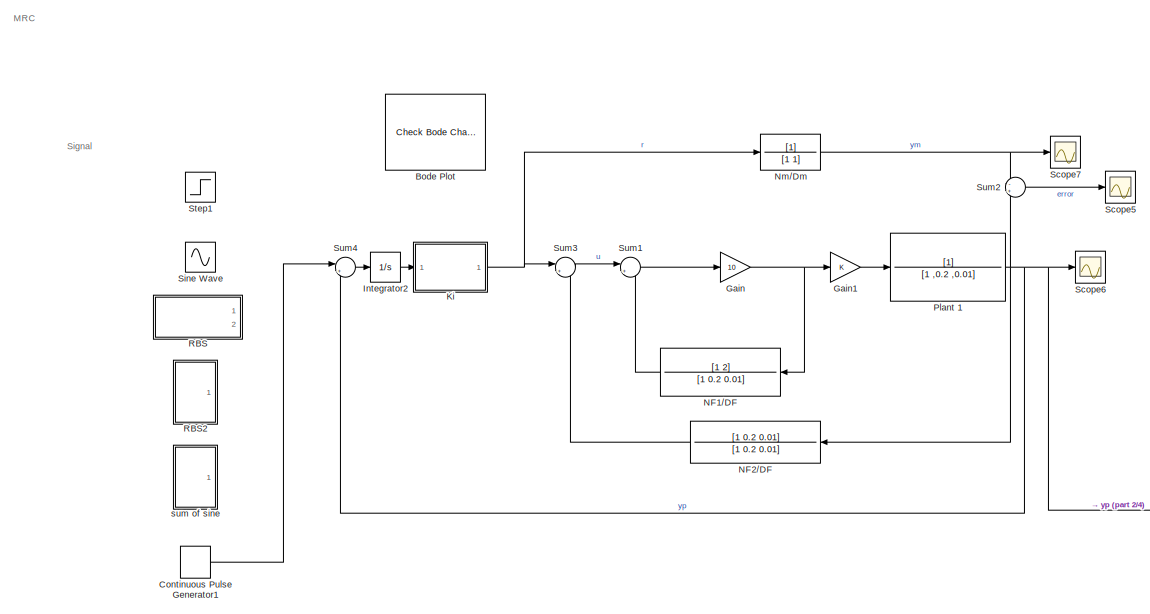
[diagram: root canvas - part 1/4, full width, top band]
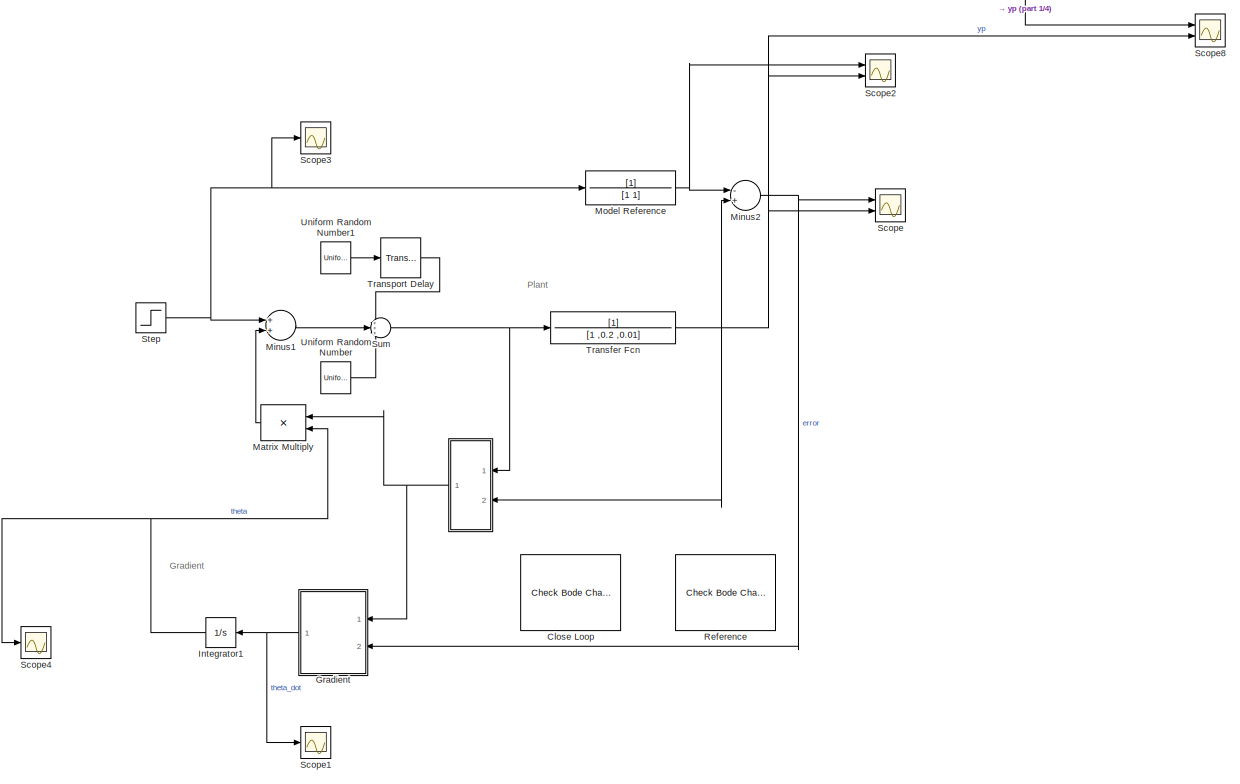
[diagram: root canvas - part 2/4, full width, middle band]
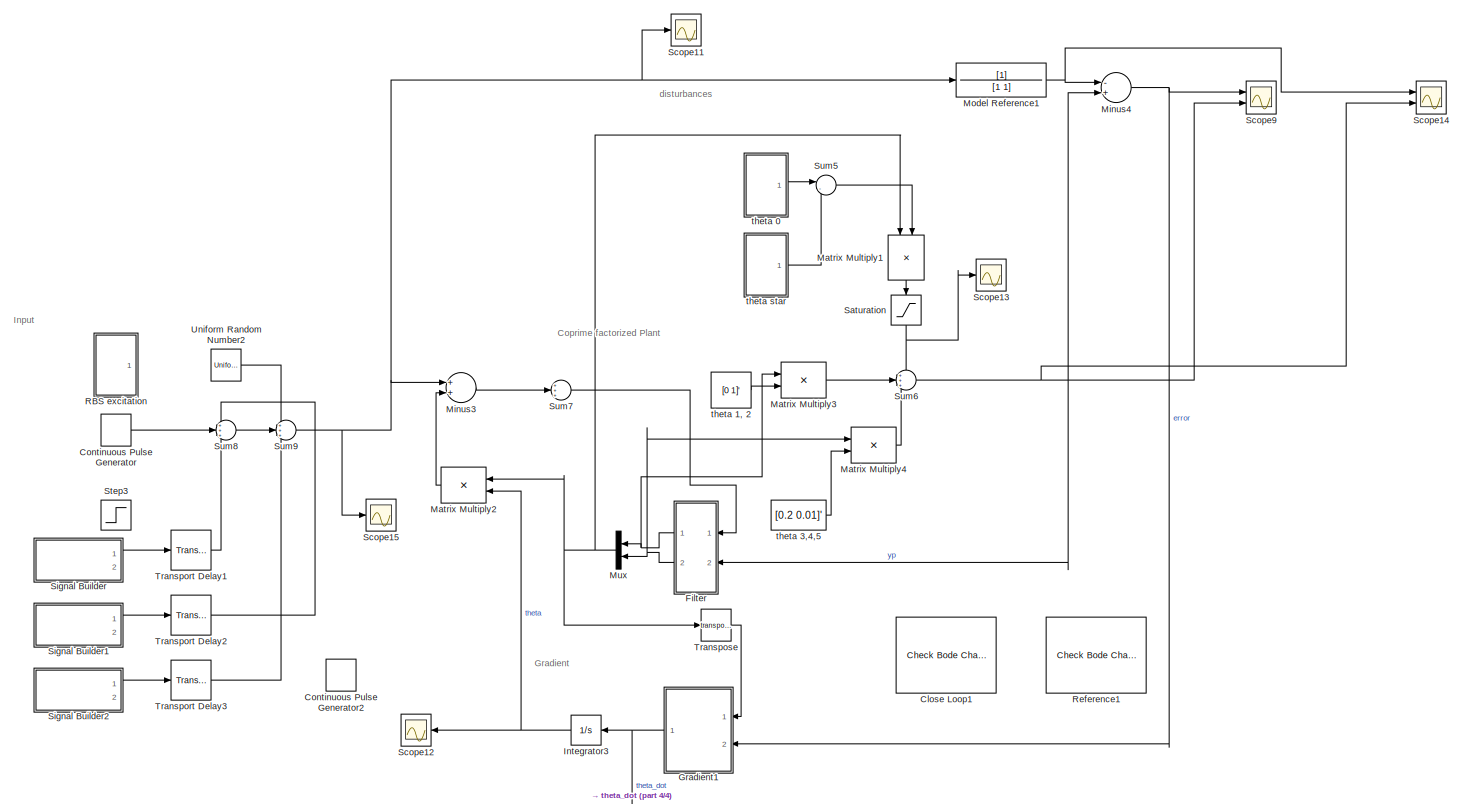
[diagram: root canvas - part 3/4, full width, bottom band]
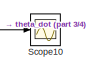
[diagram: root canvas - part 4/4, bottom center region]
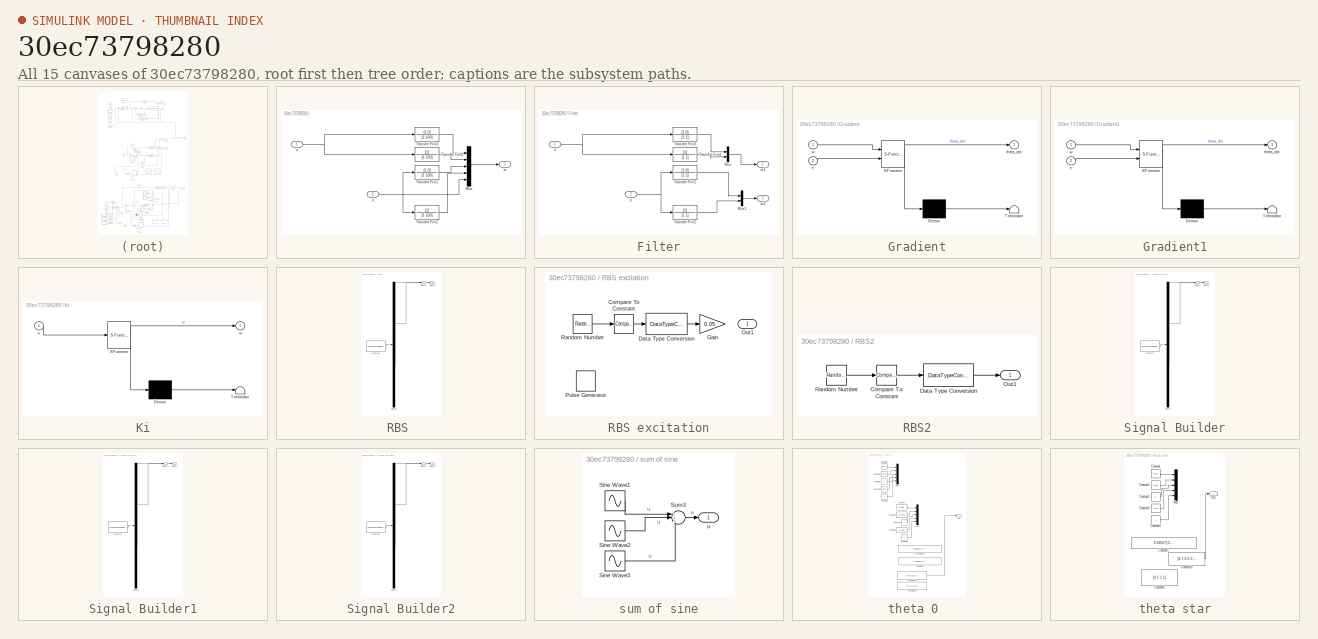
[diagram: thumbnail index - all 15 canvases of the model, root first then tree order]
MODEL slx_30ec73798280
KIND model
CONFIG AbsTol = auto
CONFIG EnableMultiTasking = off
CONFIG FixedStep = auto
CONFIG MaxStep = auto
CONFIG MinStep = auto
CONFIG RelTol = 1e-3
CONFIG SampleTimeConstraint = Unconstrained
CONFIG Solver = VariableStepAuto
CONFIG SolverName = VariableStepAuto
CONFIG StartTime = 0.0
CONFIG StopTime = 17000
BLOCK [SubSystem]  
  Commented = on
  Ports = [2, 1]
  RequestExecContextInheritance = off
BLOCK [Mux]  /Mux
  DisplayOption = bar
  Inputs = 5
  Ports = [5, 1]
BLOCK [TransferFcn]  /Transfer Fcn1
  Denominator = [1 100]
  Numerator = [1 0]
BLOCK [TransferFcn]  /Transfer Fcn2
  Denominator = [1 100]
BLOCK [TransferFcn]  /Transfer Fcn3
  Denominator = [1 100]
  Numerator = [1 0]
BLOCK [TransferFcn]  /Transfer Fcn4
  Denominator = [1 100]
BLOCK [Inport]  /u 
  IconDisplay = Port number
BLOCK [Outport]  /w
  IconDisplay = Port number
BLOCK [Inport]  /y 
  IconDisplay = Port number
  Port = 2
BLOCK [Reference] Bode Plot  REF=slctrlblks/Model Verification/Check Bode 
Characteristics
  Commented = on
  InstantiateOnLoad = on
  Ports = []
  SourceBlock = slctrlblks/Model Verification/Check Bode \nCharacteristics
  SourceProductBaseCode = SD
  SourceProductName = Simulink Control Design
  SourceType = Checks_Bode
BLOCK [Reference] Close Loop  REF=slctrlblks/Model Verification/Check Bode 
Characteristics
  Commented = on
  InstantiateOnLoad = on
  Ports = []
  SourceBlock = slctrlblks/Model Verification/Check Bode \nCharacteristics
  SourceProductBaseCode = SD
  SourceProductName = Simulink Control Design
  SourceType = Checks_Bode
BLOCK [Reference] Close Loop1  REF=slctrlblks/Model Verification/Check Bode 
Characteristics
  InstantiateOnLoad = on
  Ports = []
  SourceBlock = slctrlblks/Model Verification/Check Bode \nCharacteristics
  SourceProductBaseCode = SD
  SourceProductName = Simulink Control Design
  SourceType = Checks_Bode
BLOCK [DiscretePulseGenerator] Continuous Pulse Generator
  Period = 60
  Ports = [0, 1]
  PulseType = Time based
  PulseWidth = 50
BLOCK [DiscretePulseGenerator] Continuous Pulse Generator1
  Commented = on
  Period = 1
  Ports = [0, 1]
  PulseType = Time based
  PulseWidth = 50
BLOCK [DiscretePulseGenerator] Continuous Pulse Generator2
  Amplitude = 10
  Commented = on
  Period = 1
  Ports = [0, 1]
  PulseType = Time based
  PulseWidth = 50
BLOCK [SubSystem] Filter
  Ports = [2, 2]
  RequestExecContextInheritance = off
BLOCK [Mux] Filter/Mux
  DisplayOption = bar
  Inputs = 2
  Ports = [2, 1]
BLOCK [Mux] Filter/Mux1
  DisplayOption = bar
  Inputs = 2
  Ports = [2, 1]
BLOCK [TransferFcn] Filter/Transfer Fcn1
  Denominator = [1 1]
  Numerator = [1 0]
BLOCK [TransferFcn] Filter/Transfer Fcn2
  Denominator = [1 1]
BLOCK [TransferFcn] Filter/Transfer Fcn3
  Denominator = [1 1]
  Numerator = [1 0]
BLOCK [TransferFcn] Filter/Transfer Fcn4
  Denominator = [1 1]
BLOCK [Inport] Filter/u 
  IconDisplay = Port number
BLOCK [Outport] Filter/w1
  IconDisplay = Port number
BLOCK [Outport] Filter/w2
  IconDisplay = Port number
  Port = 2
BLOCK [Inport] Filter/y 
  IconDisplay = Port number
  Port = 2
BLOCK [Gain] Gain
  Commented = on
  Gain = 10
  OutDataTypeStr = Inherit: Inherit via internal rule
  ParamDataTypeStr = Inherit: Inherit via internal rule
  SaturateOnIntegerOverflow = off
BLOCK [Gain] Gain1
  Commented = on
  OutDataTypeStr = Inherit: Inherit via internal rule
  ParamDataTypeStr = Inherit: Inherit via internal rule
  SaturateOnIntegerOverflow = off
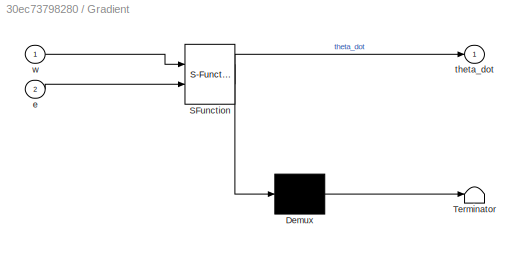
BLOCK [SubSystem] Gradient
  Commented = on
  ErrorFcn = Stateflow.Translate.translate
  PermitHierarchicalResolution = ExplicitOnly
  Ports = [2, 1]
  RequestExecContextInheritance = off
  SFBlockType = MATLAB Function
  TreatAsAtomicUnit = on
BLOCK [Demux] Gradient/ Demux 
  Outputs = 1
  Ports = [1, 1]
BLOCK [S-Function] Gradient/ SFunction 
  EnableBusSupport = on
  FunctionName = sf_sfun
  PortCounts = [2 2]
  Ports = [2, 2]
  SFcnIsStateOwnerBlock = off
  SFunctionDeploymentMode = off
  Tag = Stateflow S-Function 2
BLOCK [Terminator] Gradient/ Terminator 
BLOCK [Inport] Gradient/e
  IconDisplay = Port number
  Port = 2
BLOCK [Outport] Gradient/theta_dot
  IconDisplay = Port number
BLOCK [Inport] Gradient/w
  IconDisplay = Port number
BLOCK [SubSystem] Gradient1
  ErrorFcn = Stateflow.Translate.translate
  PermitHierarchicalResolution = ExplicitOnly
  Ports = [2, 1]
  RequestExecContextInheritance = off
  SFBlockType = MATLAB Function
  TreatAsAtomicUnit = on
BLOCK [Demux] Gradient1/ Demux 
  Outputs = 1
  Ports = [1, 1]
BLOCK [S-Function] Gradient1/ SFunction 
  EnableBusSupport = on
  FunctionName = sf_sfun
  PortCounts = [2 2]
  Ports = [2, 2]
  SFcnIsStateOwnerBlock = off
  SFunctionDeploymentMode = off
  Tag = Stateflow S-Function 5
BLOCK [Terminator] Gradient1/ Terminator 
BLOCK [Inport] Gradient1/e
  IconDisplay = Port number
  Port = 2
BLOCK [Outport] Gradient1/theta_dot
  IconDisplay = Port number
BLOCK [Inport] Gradient1/w
  IconDisplay = Port number
BLOCK [Integrator] Integrator1
  Commented = on
  Ports = [1, 1]
BLOCK [Integrator] Integrator2
  Commented = on
  Ports = [1, 1]
BLOCK [Integrator] Integrator3
  Ports = [1, 1]
BLOCK [SubSystem] Ki
  Commented = on
  ErrorFcn = Stateflow.Translate.translate
  PermitHierarchicalResolution = ExplicitOnly
  Ports = [1, 1]
  RequestExecContextInheritance = off
  SFBlockType = MATLAB Function
  TreatAsAtomicUnit = on
BLOCK [Demux] Ki/ Demux 
  Outputs = 1
  Ports = [1, 1]
BLOCK [S-Function] Ki/ SFunction 
  EnableBusSupport = on
  FunctionName = sf_sfun
  PortCounts = [1 2]
  Ports = [1, 2]
  SFcnIsStateOwnerBlock = off
  SFunctionDeploymentMode = off
  Tag = Stateflow S-Function 4
BLOCK [Terminator] Ki/ Terminator 
BLOCK [Inport] Ki/u
  IconDisplay = Port number
BLOCK [Outport] Ki/ui
  IconDisplay = Port number
BLOCK [Product] Matrix Multiply
  Commented = on
  InputSameDT = off
  Multiplication = Matrix(*)
  OutDataTypeStr = Inherit: Inherit via internal rule
  Ports = [2, 1]
  RndMeth = Floor
  SaturateOnIntegerOverflow = off
BLOCK [Product] Matrix Multiply1
  InputSameDT = off
  Multiplication = Matrix(*)
  OutDataTypeStr = Inherit: Inherit via internal rule
  Ports = [2, 1]
  RndMeth = Floor
  SaturateOnIntegerOverflow = off
BLOCK [Product] Matrix Multiply2
  InputSameDT = off
  Multiplication = Matrix(*)
  OutDataTypeStr = Inherit: Inherit via internal rule
  Ports = [2, 1]
  RndMeth = Floor
  SaturateOnIntegerOverflow = off
BLOCK [Product] Matrix Multiply3
  InputSameDT = off
  Multiplication = Matrix(*)
  OutDataTypeStr = Inherit: Inherit via internal rule
  Ports = [2, 1]
  RndMeth = Floor
  SaturateOnIntegerOverflow = off
BLOCK [Product] Matrix Multiply4
  InputSameDT = off
  Multiplication = Matrix(*)
  OutDataTypeStr = Inherit: Inherit via internal rule
  Ports = [2, 1]
  RndMeth = Floor
  SaturateOnIntegerOverflow = off
BLOCK [Sum] Minus1
  Commented = on
  InputSameDT = off
  OutDataTypeStr = Inherit: Inherit via internal rule
  Ports = [2, 1]
  SaturateOnIntegerOverflow = off
BLOCK [Sum] Minus2
  Commented = on
  InputSameDT = off
  Inputs = -+
  OutDataTypeStr = Inherit: Inherit via internal rule
  Ports = [2, 1]
  SaturateOnIntegerOverflow = off
BLOCK [Sum] Minus3
  InputSameDT = off
  OutDataTypeStr = Inherit: Inherit via internal rule
  Ports = [2, 1]
  SaturateOnIntegerOverflow = off
BLOCK [Sum] Minus4
  InputSameDT = off
  Inputs = -+
  OutDataTypeStr = Inherit: Inherit via internal rule
  Ports = [2, 1]
  SaturateOnIntegerOverflow = off
BLOCK [TransferFcn] Model Reference
  Commented = on
  Denominator = [1 1]
BLOCK [TransferFcn] Model Reference1
  Denominator = [1 1]
BLOCK [Mux] Mux
  DisplayOption = bar
  Inputs = 2
  Ports = [2, 1]
BLOCK [TransferFcn] NF1//DF
  Commented = on
  Denominator = [1 0.2 0.01]
  Numerator = [1 2]
BLOCK [TransferFcn] NF2//DF
  Commented = on
  Denominator = [1 0.2 0.01]
  Numerator = [1 0.2 0.01]
BLOCK [TransferFcn] Nm//Dm 
  Commented = on
  Denominator = [1 1]
BLOCK [TransferFcn] Plant 1
  Commented = on
  Denominator = [1 ,0.2 ,0.01]
BLOCK [SubSystem] RBS 
  ClipboardFcn = sigbuilder_block('clipboard');
  CloseFcn = sigbuilder_block('close');
  Commented = on
  ContinueFcn = sigbuilder_block('continue');
  CopyFcn = sigbuilder_block('copy');
  DeleteFcn = sigbuilder_block('delete');
  LoadFcn = sigbuilder_block('load');
  MaskHideContents = on
  ModelCloseFcn = sigbuilder_block('modelClose');
  NameChangeFcn = sigbuilder_block('namechange');
  OpenFcn = sigbuilder_block('open',[215 62.5 550.5 362.5 ]);
  PauseFcn = sigbuilder_block('pause');
  Ports = [0, 2]
  PreSaveFcn = sigbuilder_block('preSave');
  RequestExecContextInheritance = off
  StartFcn = sigbuilder_block('start');
  StopFcn = sigbuilder_block('stop');
  Tag = STV Subsys
BLOCK [Demux] RBS /Demux
  Outputs = 2
  Ports = [1, 2]
  Tag = STV Demux
BLOCK [FromWorkspace] RBS /FromWs
  SampleTime = 0
  Tag = STV FromWs
  VariableName = tuvar
  ZeroCross = on
BLOCK [Outport] RBS /Signal 1
  IconDisplay = Port number
  Tag = STV Outport
BLOCK [Outport] RBS /Signal 2
  IconDisplay = Port number
  Port = 2
  Tag = STV Outport
BLOCK [SubSystem] RBS excitation
  Ports = [0, 1]
  RequestExecContextInheritance = off
BLOCK [Reference] RBS excitation/Compare To Constant  REF=simulink/Logic and Bit
Operations/Compare
To Constant
  Ports = [1, 1]
  SourceBlock = simulink/Logic and Bit\nOperations/Compare\nTo Constant
  SourceProductBaseCode = SL
  SourceProductName = Simulink
  SourceType = Compare To Constant
BLOCK [DataTypeConversion] RBS excitation/Data Type Conversion
  OutDataTypeStr = double
  RndMeth = Floor
  SaturateOnIntegerOverflow = off
BLOCK [Gain] RBS excitation/Gain
  Gain = 0.05
  OutDataTypeStr = Inherit: Inherit via internal rule
  ParamDataTypeStr = Inherit: Inherit via internal rule
  SaturateOnIntegerOverflow = off
BLOCK [Outport] RBS excitation/Out1
  IconDisplay = Port number
BLOCK [DiscretePulseGenerator] RBS excitation/Pulse Generator
  Amplitude = 0.01
  Period = 10
  Ports = [0, 1]
  PulseType = Time based
  PulseWidth = 5
BLOCK [RandomNumber] RBS excitation/Random Number
  Mean = 0.1
  SampleTime = 1
  Variance = 0.1
BLOCK [SubSystem] RBS2
  Commented = on
  Ports = [0, 1]
  RequestExecContextInheritance = off
BLOCK [Reference] RBS2/Compare To Constant  REF=simulink/Logic and Bit
Operations/Compare
To Constant
  Ports = [1, 1]
  SourceBlock = simulink/Logic and Bit\nOperations/Compare\nTo Constant
  SourceProductBaseCode = SL
  SourceProductName = Simulink
  SourceType = Compare To Constant
BLOCK [DataTypeConversion] RBS2/Data Type Conversion
  OutDataTypeStr = double
  RndMeth = Floor
  SaturateOnIntegerOverflow = off
BLOCK [Outport] RBS2/Out1
  IconDisplay = Port number
BLOCK [RandomNumber] RBS2/Random Number
  Mean = 1
  SampleTime = 10
BLOCK [Reference] Reference  REF=slctrlblks/Model Verification/Check Bode 
Characteristics
  Commented = on
  InstantiateOnLoad = on
  Ports = []
  SourceBlock = slctrlblks/Model Verification/Check Bode \nCharacteristics
  SourceProductBaseCode = SD
  SourceProductName = Simulink Control Design
  SourceType = Checks_Bode
BLOCK [Reference] Reference1  REF=slctrlblks/Model Verification/Check Bode 
Characteristics
  InstantiateOnLoad = on
  Ports = []
  SourceBlock = slctrlblks/Model Verification/Check Bode \nCharacteristics
  SourceProductBaseCode = SD
  SourceProductName = Simulink Control Design
  SourceType = Checks_Bode
BLOCK [Saturate] Saturation
  InputPortMap = u0
  LowerLimit = -0.1
  Ports = [1, 1]
  UpperLimit = 0.1
BLOCK [Scope] Scope
  Commented = on
  Floating = off
  NumInputPorts = 2
  Ports = [2]
  ScopeSpecificationString = Simulink.scopes.TimeScopeBlockCfg('CurrentConfiguration', extmgr.ConfigurationSet(extmgr.Configuration('Core','General UI',true),extmgr.Configuration('Core','Source UI',true),extmgr.Configuration('Sources','WiredSimulink',true),extmgr.Configuration('Visuals','Time Domain',true,'SerializedDisplays',{struct('MinYLimReal','-5.57115','MaxYLimReal','8.4499','YLabelReal','','MinYLimMag','0.00000','MaxYL...<+1407ch>
BLOCK [Scope] Scope1
  Commented = on
  Floating = off
  NumInputPorts = 1
  Ports = [1]
  ScopeSpecificationString = Simulink.scopes.TimeScopeBlockCfg('CurrentConfiguration', extmgr.ConfigurationSet(extmgr.Configuration('Core','General UI',true),extmgr.Configuration('Core','Source UI',true),extmgr.Configuration('Sources','WiredSimulink',true,'DataLoggingVariableName','ScopeData1'),extmgr.Configuration('Visuals','Time Domain',true,'SerializedDisplays',{struct('MinYLimReal','-0.54544','MaxYLimReal','0.3019','YLabe...<+1486ch>
BLOCK [Scope] Scope10
  Floating = off
  NumInputPorts = 1
  Ports = [1]
  ScopeSpecificationString = Simulink.scopes.TimeScopeBlockCfg('CurrentConfiguration', extmgr.ConfigurationSet(extmgr.Configuration('Core','General UI',true),extmgr.Configuration('Core','Source UI',true),extmgr.Configuration('Sources','WiredSimulink',true,'DataLoggingVariableName','ScopeData1'),extmgr.Configuration('Visuals','Time Domain',true,'SerializedDisplays',{struct('MinYLimReal','-0.54544','MaxYLimReal','0.3019','YLabe...<+1486ch>
BLOCK [Scope] Scope11
  Floating = off
  NumInputPorts = 1
  Ports = [1]
  ScopeSpecificationString = Simulink.scopes.TimeScopeBlockCfg('CurrentConfiguration', extmgr.ConfigurationSet(extmgr.Configuration('Core','General UI',true),extmgr.Configuration('Core','Source UI',true),extmgr.Configuration('Sources','WiredSimulink',true,'DataLoggingVariableName','ScopeData2'),extmgr.Configuration('Visuals','Time Domain',true,'SerializedDisplays',{struct('MinYLimReal','-0.125','MaxYLimReal','1.125','YLabelRe...<+1379ch>
BLOCK [Scope] Scope12
  Floating = off
  NumInputPorts = 1
  Ports = [1]
  ScopeSpecificationString = Simulink.scopes.TimeScopeBlockCfg('CurrentConfiguration', extmgr.ConfigurationSet(extmgr.Configuration('Core','General UI',true),extmgr.Configuration('Core','Source UI',true),extmgr.Configuration('Sources','WiredSimulink',true,'DataLoggingVariableName','ScopeData3'),extmgr.Configuration('Visuals','Time Domain',true,'SerializedDisplays',{struct('MinYLimReal','-0.38248','MaxYLimReal','0.11683','YLab...<+1808ch>
BLOCK [Scope] Scope13
  Floating = off
  NumInputPorts = 1
  Ports = [1]
  ScopeSpecificationString = Simulink.scopes.TimeScopeBlockCfg('CurrentConfiguration', extmgr.ConfigurationSet(extmgr.Configuration('Core','General UI',true),extmgr.Configuration('Core','Source UI',true),extmgr.Configuration('Sources','WiredSimulink',true,'DataLoggingVariableName','ScopeData5'),extmgr.Configuration('Visuals','Time Domain',true,'SerializedDisplays',{struct('MinYLimReal','-0.125','MaxYLimReal','0.125','YLabelRe...<+1481ch>
BLOCK [Scope] Scope14
  Floating = off
  NumInputPorts = 2
  Ports = [2]
  ScopeSpecificationString = Simulink.scopes.TimeScopeBlockCfg('CurrentConfiguration', extmgr.ConfigurationSet(extmgr.Configuration('Core','General UI',true),extmgr.Configuration('Core','Source UI',true),extmgr.Configuration('Sources','WiredSimulink',true,'DataLoggingVariableName','ScopeData1'),extmgr.Configuration('Visuals','Time Domain',true,'SerializedDisplays',{struct('MinYLimReal','-0.22012','MaxYLimReal','1.29053','YLab...<+1512ch>
BLOCK [Scope] Scope15
  Floating = off
  NumInputPorts = 1
  Ports = [1]
  ScopeSpecificationString = Simulink.scopes.TimeScopeBlockCfg('CurrentConfiguration', extmgr.ConfigurationSet(extmgr.Configuration('Core','General UI',true),extmgr.Configuration('Core','Source UI',true),extmgr.Configuration('Sources','WiredSimulink',true,'DataLoggingVariableName','ScopeData1'),extmgr.Configuration('Visuals','Time Domain',true,'SerializedDisplays',{struct('MinYLimReal','-2.74998','MaxYLimReal','23.74985','YLa...<+1456ch>
BLOCK [Scope] Scope2
  Commented = on
  Floating = off
  NumInputPorts = 2
  Ports = [2]
  ScopeSpecificationString = Simulink.scopes.TimeScopeBlockCfg('CurrentConfiguration', extmgr.ConfigurationSet(extmgr.Configuration('Core','General UI',true),extmgr.Configuration('Core','Source UI',true),extmgr.Configuration('Sources','WiredSimulink',true,'DataLoggingVariableName','ScopeData2'),extmgr.Configuration('Visuals','Time Domain',true,'SerializedDisplays',{struct('MinYLimReal','-4.44702','MaxYLimReal','8.32526','YLab...<+1444ch>
BLOCK [Scope] Scope3
  Commented = on
  Floating = off
  NumInputPorts = 1
  Ports = [1]
  ScopeSpecificationString = Simulink.scopes.TimeScopeBlockCfg('CurrentConfiguration', extmgr.ConfigurationSet(extmgr.Configuration('Core','General UI',true),extmgr.Configuration('Core','Source UI',true),extmgr.Configuration('Sources','WiredSimulink',true,'DataLoggingVariableName','ScopeData3'),extmgr.Configuration('Visuals','Time Domain',true,'SerializedDisplays',{struct('MinYLimReal','-0.125','MaxYLimReal','1.125','YLabelRe...<+1351ch>
BLOCK [Scope] Scope4
  Commented = on
  Floating = off
  NumInputPorts = 1
  Ports = [1]
  ScopeSpecificationString = Simulink.scopes.TimeScopeBlockCfg('CurrentConfiguration', extmgr.ConfigurationSet(extmgr.Configuration('Core','General UI',true),extmgr.Configuration('Core','Source UI',true),extmgr.Configuration('Sources','WiredSimulink',true,'DataLoggingVariableName','ScopeData2'),extmgr.Configuration('Visuals','Time Domain',true,'SerializedDisplays',{struct('MinYLimReal','-0.09045','MaxYLimReal','0.05525','YLab...<+1470ch>
BLOCK [Scope] Scope5
  Commented = on
  Floating = off
  NumInputPorts = 1
  Ports = [1]
  ScopeSpecificationString = Simulink.scopes.TimeScopeBlockCfg('CurrentConfiguration', extmgr.ConfigurationSet(extmgr.Configuration('Core','General UI',true),extmgr.Configuration('Core','Source UI',true),extmgr.Configuration('Sources','WiredSimulink',true,'DataLoggingVariableName','ScopeData1'),extmgr.Configuration('Visuals','Time Domain',true,'SerializedDisplays',{struct('MinYLimReal','-0.01761','MaxYLimReal','0.00937','YLab...<+1434ch>
BLOCK [Scope] Scope6
  Commented = on
  Floating = off
  NumInputPorts = 1
  Ports = [1]
  ScopeSpecificationString = Simulink.scopes.TimeScopeBlockCfg('CurrentConfiguration', extmgr.ConfigurationSet(extmgr.Configuration('Core','General UI',true),extmgr.Configuration('Core','Source UI',true),extmgr.Configuration('Sources','WiredSimulink',true,'DataLoggingVariableName','ScopeData2'),extmgr.Configuration('Visuals','Time Domain',true,'SerializedDisplays',{struct('MinYLimReal','-0.06626','MaxYLimReal','0.59638','YLab...<+1431ch>
BLOCK [Scope] Scope7
  Commented = on
  Floating = off
  NumInputPorts = 1
  Ports = [1]
  ScopeSpecificationString = Simulink.scopes.TimeScopeBlockCfg('CurrentConfiguration', extmgr.ConfigurationSet(extmgr.Configuration('Core','General UI',true),extmgr.Configuration('Core','Source UI',true),extmgr.Configuration('Sources','WiredSimulink',true,'DataLoggingVariableName','ScopeData3'),extmgr.Configuration('Visuals','Time Domain',true,'SerializedDisplays',{struct('MinYLimReal','-0.06613','MaxYLimReal','0.59517','YLab...<+1386ch>
BLOCK [Scope] Scope8
  Commented = on
  Floating = off
  NumInputPorts = 2
  Ports = [2]
  ScopeSpecificationString = Simulink.scopes.TimeScopeBlockCfg('CurrentConfiguration', extmgr.ConfigurationSet(extmgr.Configuration('Core','General UI',true),extmgr.Configuration('Core','Source UI',true),extmgr.Configuration('Sources','WiredSimulink',true,'DataLoggingVariableName','ScopeData4'),extmgr.Configuration('Visuals','Time Domain',true),extmgr.Configuration('Tools','Plot Navigation',true),extmgr.Configuration('Tools',...<+40ch>
BLOCK [Scope] Scope9
  Floating = off
  NumInputPorts = 2
  Ports = [2]
  ScopeSpecificationString = Simulink.scopes.TimeScopeBlockCfg('CurrentConfiguration', extmgr.ConfigurationSet(extmgr.Configuration('Core','General UI',true),extmgr.Configuration('Core','Source UI',true),extmgr.Configuration('Sources','WiredSimulink',true,'DataLoggingVariableName','ScopeData4'),extmgr.Configuration('Visuals','Time Domain',true,'SerializedDisplays',{struct('MinYLimReal','-1.02377','MaxYLimReal','1.1794','YLabe...<+1498ch>
BLOCK [SubSystem] Signal Builder
  ClipboardFcn = sigbuilder_block('clipboard');
  CloseFcn = sigbuilder_block('close');
  ContinueFcn = sigbuilder_block('continue');
  CopyFcn = sigbuilder_block('copy');
  DeleteFcn = sigbuilder_block('delete');
  LoadFcn = sigbuilder_block('load');
  MaskHideContents = on
  ModelCloseFcn = sigbuilder_block('modelClose');
  NameChangeFcn = sigbuilder_block('namechange');
  OpenFcn = sigbuilder_block('open',[1440 -240 1440 725.5 ]);
  PauseFcn = sigbuilder_block('pause');
  Ports = [0, 2]
  PreSaveFcn = sigbuilder_block('preSave');
  RequestExecContextInheritance = off
  StartFcn = sigbuilder_block('start');
  StopFcn = sigbuilder_block('stop');
  Tag = STV Subsys
BLOCK [Demux] Signal Builder/Demux
  Outputs = 2
  Ports = [1, 2]
  Tag = STV Demux
BLOCK [FromWorkspace] Signal Builder/FromWs
  SampleTime = 0
  Tag = STV FromWs
  VariableName = tuvar
  ZeroCross = on
BLOCK [Outport] Signal Builder/Signal 1
  IconDisplay = Port number
  Tag = STV Outport
BLOCK [Outport] Signal Builder/Signal 2
  IconDisplay = Port number
  Port = 2
  Tag = STV Outport
BLOCK [SubSystem] Signal Builder1
  ClipboardFcn = sigbuilder_block('clipboard');
  CloseFcn = sigbuilder_block('close');
  ContinueFcn = sigbuilder_block('continue');
  CopyFcn = sigbuilder_block('copy');
  DeleteFcn = sigbuilder_block('delete');
  LoadFcn = sigbuilder_block('load');
  MaskHideContents = on
  ModelCloseFcn = sigbuilder_block('modelClose');
  NameChangeFcn = sigbuilder_block('namechange');
  OpenFcn = sigbuilder_block('open',[1759.5 -16 550.5 250 ]);
  PauseFcn = sigbuilder_block('pause');
  Ports = [0, 2]
  PreSaveFcn = sigbuilder_block('preSave');
  RequestExecContextInheritance = off
  StartFcn = sigbuilder_block('start');
  StopFcn = sigbuilder_block('stop');
  Tag = STV Subsys
BLOCK [Demux] Signal Builder1/Demux
  Outputs = 2
  Ports = [1, 2]
  Tag = STV Demux
BLOCK [FromWorkspace] Signal Builder1/FromWs
  SampleTime = 0
  Tag = STV FromWs
  VariableName = tuvar
  ZeroCross = on
BLOCK [Outport] Signal Builder1/Signal 1
  IconDisplay = Port number
  Tag = STV Outport
BLOCK [Outport] Signal Builder1/Signal 2
  IconDisplay = Port number
  Port = 2
  Tag = STV Outport
BLOCK [SubSystem] Signal Builder2
  ClipboardFcn = sigbuilder_block('clipboard');
  CloseFcn = sigbuilder_block('close');
  ContinueFcn = sigbuilder_block('continue');
  CopyFcn = sigbuilder_block('copy');
  DeleteFcn = sigbuilder_block('delete');
  LoadFcn = sigbuilder_block('load');
  MaskHideContents = on
  ModelCloseFcn = sigbuilder_block('modelClose');
  NameChangeFcn = sigbuilder_block('namechange');
  OpenFcn = sigbuilder_block('open',[1759.5 -16 550.5 250 ]);
  PauseFcn = sigbuilder_block('pause');
  Ports = [0, 2]
  PreSaveFcn = sigbuilder_block('preSave');
  RequestExecContextInheritance = off
  StartFcn = sigbuilder_block('start');
  StopFcn = sigbuilder_block('stop');
  Tag = STV Subsys
BLOCK [Demux] Signal Builder2/Demux
  Outputs = 2
  Ports = [1, 2]
  Tag = STV Demux
BLOCK [FromWorkspace] Signal Builder2/FromWs
  SampleTime = 0
  Tag = STV FromWs
  VariableName = tuvar
  ZeroCross = on
BLOCK [Outport] Signal Builder2/Signal 1
  IconDisplay = Port number
  Tag = STV Outport
BLOCK [Outport] Signal Builder2/Signal 2
  IconDisplay = Port number
  Port = 2
  Tag = STV Outport
BLOCK [Sin] Sine Wave
  Commented = on
  Frequency = 0.1
  Ports = [0, 1]
  SampleTime = 0
BLOCK [Step] Step
  Commented = on
  SampleTime = 0
BLOCK [Step] Step1
  Commented = on
  SampleTime = 0
BLOCK [Step] Step3
  SampleTime = 0
BLOCK [Sum] Sum
  Commented = on
  IconShape = round
  InputSameDT = off
  Inputs = +++
  OutDataTypeStr = Inherit: Inherit via internal rule
  Ports = [3, 1]
  SaturateOnIntegerOverflow = off
BLOCK [Sum] Sum1
  Commented = on
  IconShape = round
  InputSameDT = off
  Inputs = |+-
  OutDataTypeStr = Inherit: Inherit via internal rule
  Ports = [2, 1]
  SaturateOnIntegerOverflow = off
BLOCK [Sum] Sum2
  Commented = on
  IconShape = round
  InputSameDT = off
  Inputs = -+
  OutDataTypeStr = Inherit: Inherit via internal rule
  Ports = [2, 1]
  SaturateOnIntegerOverflow = off
BLOCK [Sum] Sum3
  Commented = on
  IconShape = round
  InputSameDT = off
  Inputs = |++
  OutDataTypeStr = Inherit: Inherit via internal rule
  Ports = [2, 1]
  SaturateOnIntegerOverflow = off
BLOCK [Sum] Sum4
  Commented = on
  IconShape = round
  InputSameDT = off
  Inputs = |+-
  OutDataTypeStr = Inherit: Inherit via internal rule
  Ports = [2, 1]
  SaturateOnIntegerOverflow = off
BLOCK [Sum] Sum5
  IconShape = round
  InputSameDT = off
  Inputs = |-+
  OutDataTypeStr = Inherit: Inherit via internal rule
  Ports = [2, 1]
  SaturateOnIntegerOverflow = off
BLOCK [Sum] Sum6
  IconShape = round
  InputSameDT = off
  Inputs = +++
  OutDataTypeStr = Inherit: Inherit via internal rule
  Ports = [3, 1]
  SaturateOnIntegerOverflow = off
BLOCK [Sum] Sum7
  IconShape = round
  InputSameDT = off
  Inputs = +++
  OutDataTypeStr = Inherit: Inherit via internal rule
  Ports = [3, 1]
  SaturateOnIntegerOverflow = off
BLOCK [Sum] Sum8
  IconShape = round
  InputSameDT = off
  Inputs = +++
  OutDataTypeStr = Inherit: Inherit via internal rule
  Ports = [3, 1]
  SaturateOnIntegerOverflow = off
BLOCK [Sum] Sum9
  IconShape = round
  InputSameDT = off
  Inputs = +++
  OutDataTypeStr = Inherit: Inherit via internal rule
  Ports = [3, 1]
  SaturateOnIntegerOverflow = off
BLOCK [TransferFcn] Transfer Fcn
  Commented = on
  Denominator = [1 ,0.2 ,0.01]
BLOCK [TransportDelay] Transport Delay
  Commented = on
  DelayTime = 150
  Ports = [1, 1]
BLOCK [TransportDelay] Transport Delay1
  DelayTime = 5000
  Ports = [1, 1]
BLOCK [TransportDelay] Transport Delay2
  DelayTime = 10000
  Ports = [1, 1]
BLOCK [TransportDelay] Transport Delay3
  DelayTime = 15000
  Ports = [1, 1]
BLOCK [Math] Transpose
  Operator = transpose
  Ports = [1, 1]
  SignedPower = off
BLOCK [UniformRandomNumber] Uniform Random Number
  Commented = on
  SampleTime = 0.05
BLOCK [UniformRandomNumber] Uniform Random Number1
  Commented = on
  Maximum = 5
  Minimum = -5
  SampleTime = 0.05
BLOCK [UniformRandomNumber] Uniform Random Number2
  Maximum = 0.1
  Minimum = -0.1
  SampleTime = 0.1
BLOCK [SubSystem] sum of sine
  Commented = on
  Ports = [0, 1]
  RequestExecContextInheritance = off
BLOCK [Sin] sum of sine/Sine Wave1
  Frequency = 0.1
  Phase = 0.1
  Ports = [0, 1]
  SampleTime = 0
BLOCK [Sin] sum of sine/Sine Wave2
  Ports = [0, 1]
  SampleTime = 0
BLOCK [Sin] sum of sine/Sine Wave3
  Frequency = 2
  Ports = [0, 1]
  SampleTime = 0
BLOCK [Sum] sum of sine/Sum3
  IconShape = round
  InputSameDT = off
  Inputs = +++
  OutDataTypeStr = Inherit: Inherit via internal rule
  Ports = [3, 1]
  SaturateOnIntegerOverflow = off
BLOCK [Outport] sum of sine/u
  IconDisplay = Port number
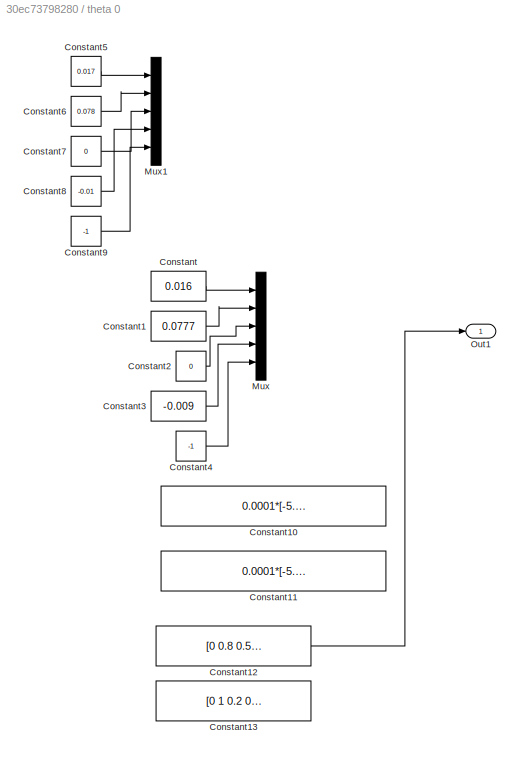
BLOCK [SubSystem] theta 0 
  Ports = [0, 1]
  RequestExecContextInheritance = off
BLOCK [Constant] theta 0 /Constant
  Value = 0.016
BLOCK [Constant] theta 0 /Constant1
  Value = 0.0777
BLOCK [Constant] theta 0 /Constant10
  Value = 0.0001*[-5.826 -52.45 -6.076 -48.07]
BLOCK [Constant] theta 0 /Constant11
  Value = 0.0001*[-5.83 -52.5 -6 -48]
BLOCK [Constant] theta 0 /Constant12
  Value = [0  0.8 0.5 0.01]
BLOCK [Constant] theta 0 /Constant13
  Value = [0  1 0.2 0.01]
BLOCK [Constant] theta 0 /Constant2
  Value = 0
BLOCK [Constant] theta 0 /Constant3
  Value = -0.009
BLOCK [Constant] theta 0 /Constant4
  Value = -1
BLOCK [Constant] theta 0 /Constant5
  Value = 0.017
BLOCK [Constant] theta 0 /Constant6
  Value = 0.078
BLOCK [Constant] theta 0 /Constant7
  Value = 0
BLOCK [Constant] theta 0 /Constant8
  Value = -0.01
BLOCK [Constant] theta 0 /Constant9
  Value = -1
BLOCK [Mux] theta 0 /Mux
  DisplayOption = bar
  Inputs = 5
  Ports = [5, 1]
BLOCK [Mux] theta 0 /Mux1
  DisplayOption = bar
  Inputs = 5
  Ports = [5, 1]
BLOCK [Outport] theta 0 /Out1
  IconDisplay = Port number
BLOCK [Constant] theta 1, 2
  Value = [0 1]'
BLOCK [Constant] theta 3,4,5
  Value = [0.2 0.01]'
BLOCK [SubSystem] theta star
  Ports = [0, 1]
  RequestExecContextInheritance = off
BLOCK [Constant] theta star/Constant
  Value = 0.017
BLOCK [Constant] theta star/Constant1
  Value = 0.078
BLOCK [Constant] theta star/Constant10
  Value = [0 1 0.2 0.01]
BLOCK [Constant] theta star/Constant2
  Value = 0
BLOCK [Constant] theta star/Constant3
  Value = -0.01
BLOCK [Constant] theta star/Constant4
  Value = -1
BLOCK [Constant] theta star/Constant5
  Value = 0.0001*[-5.826 -52.45 -6.076 -48.07]
BLOCK [Constant] theta star/Constant6
  Value = [0 1 1 1]
BLOCK [Mux] theta star/Mux
  DisplayOption = bar
  Inputs = 5
  Ports = [5, 1]
BLOCK [Outport] theta star/Out1
  IconDisplay = Port number
ANNOTATION (root): Coprime factorized Plant
ANNOTATION (root): Gradient
ANNOTATION (root): Input
ANNOTATION (root): MRC
ANNOTATION (root): Plant
ANNOTATION (root): Signal
ANNOTATION (root): disturbances
LINE  /Mux:1 ->  /w:1
LINE  /Transfer Fcn1:1 ->  /Mux:3
LINE  /Transfer Fcn2:1 ->  /Mux:4
LINE  /Transfer Fcn3:1 ->  /Mux:1
LINE  /Transfer Fcn4:1 ->  /Mux:2
NET  /u :1 ->  /Transfer Fcn3:1,  /Transfer Fcn4:1
NET  /y :1 ->  /Mux:5,  /Transfer Fcn1:1,  /Transfer Fcn2:1
NET  :1 -> Gradient:1, Matrix Multiply:1
LINE Continuous Pulse Generator1:1 -> Sum4:1
LINE Continuous Pulse Generator:1 -> Sum8:2
LINE Filter/Mux1:1 -> Filter/w2:1
LINE Filter/Mux:1 -> Filter/w1:1
LINE Filter/Transfer Fcn1:1 -> Filter/Mux1:1
LINE Filter/Transfer Fcn2:1 -> Filter/Mux1:2
LINE Filter/Transfer Fcn3:1 -> Filter/Mux:1
LINE Filter/Transfer Fcn4:1 -> Filter/Mux:2
NET Filter/u :1 -> Filter/Transfer Fcn3:1, Filter/Transfer Fcn4:1
NET Filter/y :1 -> Filter/Transfer Fcn1:1, Filter/Transfer Fcn2:1
NET Filter:1 -> Matrix Multiply3:1, Mux:1
NET Filter:2 -> Matrix Multiply4:1, Mux:2
LINE Gain1:1 -> Plant 1:1
NET Gain:1 -> Gain1:1, NF1//DF:1
NET Gradient1:1 -> Integrator3:1, Scope10:1
NET Gradient:1 -> Integrator1:1, Scope1:1
NET Integrator1:1 -> Matrix Multiply:2, Scope4:1
LINE Integrator2:1 -> Ki:1
NET Integrator3:1 -> Matrix Multiply2:2, Scope12:1
NET Ki:1 -> Nm//Dm :1, Sum3:1
LINE Matrix Multiply1:1 -> Saturation:1
LINE Matrix Multiply2:1 -> Minus3:2
LINE Matrix Multiply3:1 -> Sum6:2
LINE Matrix Multiply4:1 -> Sum6:3
LINE Matrix Multiply:1 -> Minus1:2
LINE Minus1:1 -> Sum:2
NET Minus2:1 -> Gradient:2, Scope:1
LINE Minus3:1 -> Sum7:2
NET Minus4:1 -> Gradient1:2, Scope9:1
NET Model Reference1:1 -> Minus4:1, Scope14:1
NET Model Reference:1 -> Minus2:1, Scope2:1
NET Mux:1 -> Matrix Multiply1:1, Matrix Multiply2:1, Transpose:1
LINE NF1//DF:1 -> Sum1:2
LINE NF2//DF:1 -> Sum3:2
NET Nm//Dm :1 -> Scope7:1, Sum2:1
NET Plant 1:1 -> NF2//DF:1, Scope6:1, Scope8:1, Sum2:2, Sum4:2
LINE RBS excitation/Compare To Constant:1 -> RBS excitation/Data Type Conversion:1
LINE RBS excitation/Data Type Conversion:1 -> RBS excitation/Gain:1
LINE RBS excitation/Random Number:1 -> RBS excitation/Compare To Constant:1
LINE RBS2/Compare To Constant:1 -> RBS2/Data Type Conversion:1
LINE RBS2/Data Type Conversion:1 -> RBS2/Out1:1
LINE RBS2/Random Number:1 -> RBS2/Compare To Constant:1
NET Saturation:1 -> Scope13:1, Sum6:1
LINE Signal Builder1:1 -> Transport Delay2:1
LINE Signal Builder2:1 -> Transport Delay3:1
LINE Signal Builder:1 -> Transport Delay1:1
NET Step:1 -> Minus1:1, Model Reference:1, Scope3:1
LINE Sum1:1 -> Gain:1
LINE Sum2:1 -> Scope5:1
LINE Sum3:1 -> Sum1:1
LINE Sum4:1 -> Integrator2:1
LINE Sum5:1 -> Matrix Multiply1:2
NET Sum6:1 -> Filter:2, Minus4:2, Scope14:2, Scope9:2
LINE Sum7:1 -> Filter:1
LINE Sum8:1 -> Sum9:2
NET Sum9:1 -> Minus3:1, Model Reference1:1, Scope11:1, Scope15:1
NET Sum:1 ->  :1, Transfer Fcn:1
NET Transfer Fcn:1 ->  :2, Minus2:2, Scope2:2, Scope8:2, Scope:2
LINE Transport Delay1:1 -> Sum8:3
LINE Transport Delay2:1 -> Sum8:1
LINE Transport Delay3:1 -> Sum9:3
LINE Transport Delay:1 -> Sum:1
LINE Transpose:1 -> Gradient1:1
LINE Uniform Random Number1:1 -> Transport Delay:1
LINE Uniform Random Number2:1 -> Sum9:1
LINE Uniform Random Number:1 -> Sum:3
LINE sum of sine/Sine Wave1:1 -> sum of sine/Sum3:1
LINE sum of sine/Sine Wave2:1 -> sum of sine/Sum3:2
LINE sum of sine/Sine Wave3:1 -> sum of sine/Sum3:3
LINE sum of sine/Sum3:1 -> sum of sine/u:1
LINE theta 0 /Constant12:1 -> theta 0 /Out1:1
LINE theta 0 /Constant1:1 -> theta 0 /Mux:2
LINE theta 0 /Constant2:1 -> theta 0 /Mux:3
LINE theta 0 /Constant3:1 -> theta 0 /Mux:4
LINE theta 0 /Constant4:1 -> theta 0 /Mux:5
LINE theta 0 /Constant5:1 -> theta 0 /Mux1:1
LINE theta 0 /Constant6:1 -> theta 0 /Mux1:2
LINE theta 0 /Constant7:1 -> theta 0 /Mux1:3
LINE theta 0 /Constant8:1 -> theta 0 /Mux1:4
LINE theta 0 /Constant9:1 -> theta 0 /Mux1:5
LINE theta 0 /Constant:1 -> theta 0 /Mux:1
LINE theta 0 :1 -> Sum5:1
LINE theta 1, 2:1 -> Matrix Multiply3:2
LINE theta 3,4,5:1 -> Matrix Multiply4:2
LINE theta star/Constant10:1 -> theta star/Out1:1
LINE theta star/Constant1:1 -> theta star/Mux:2
LINE theta star/Constant2:1 -> theta star/Mux:3
LINE theta star/Constant3:1 -> theta star/Mux:4
LINE theta star/Constant4:1 -> theta star/Mux:5
LINE theta star/Constant:1 -> theta star/Mux:1
LINE theta star:1 -> Sum5:2
note: NET lines group one-source signal fan-out (src -> all destinations, sorted); 1:1 wires keep LINE
CHART Gradient states=1 transitions=1
  STATE_LABEL 'eML_blk_kernel()'
  STATE_LABEL 'SCRIPT:\nfunction theta_dot = fcn(w, e)\nalpha = 0.01;\nI = eye(5);\ngamma = alpha*I;\n\n\ntheta_dot = -gamma*w*e;\n\nend\n\n'
CHART Ki states=1 transitions=1
  STATE_LABEL 'eML_blk_kernel()'
  STATE_LABEL 'SCRIPT:\nfunction ui = fcn(u)\n coder.extrinsic("ss","place","matsplit",\'ctrb\');\n% [b2, b1, b0, a1, a0] = matsplit(theta);\nui = 0;\nA = [0 1; -0.01 -0.2];\nB = [0 1]\';\nC = [1 0];\n\no = [0 0]\';\nA1 = [A o;C 0];\nB1 = [B;0];\np = [-.1+0.69805i -.1-0.69805i -1];\nK1 = place(A1,B1,p);\nKi = [K1(3)];\nui = Ki*u;\n'
CHART Gradient1 states=1 transitions=1
  STATE_LABEL 'eML_blk_kernel()'
  STATE_LABEL 'SCRIPT:\nfunction theta_dot = fcn(w, e)\nalpha = 0.05;\nI = eye(4);\ngamma = alpha*I;\n\n\ntheta_dot = -gamma*w*e;\n\nend\n\n'
